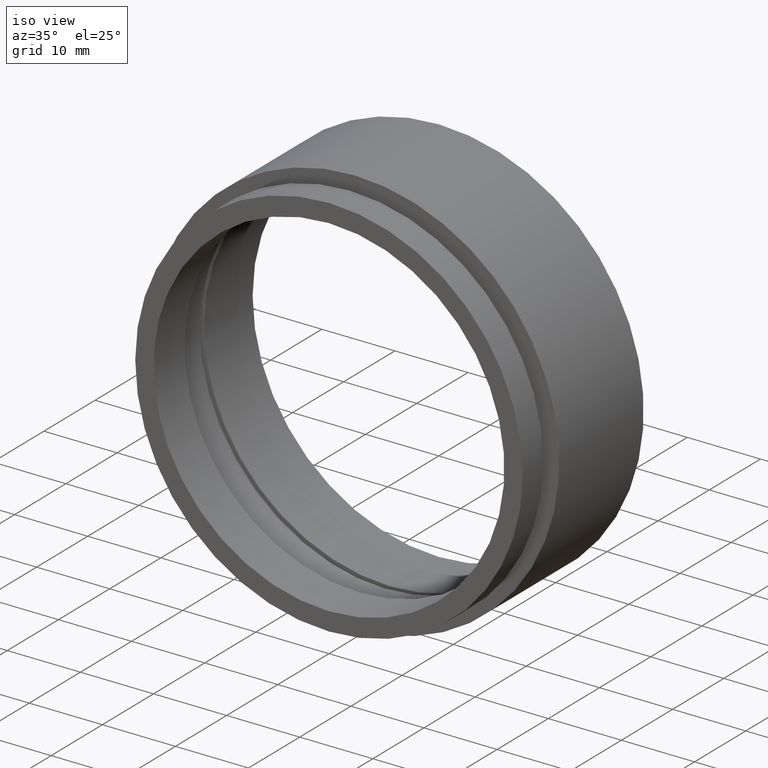
[diagram: clean part render]
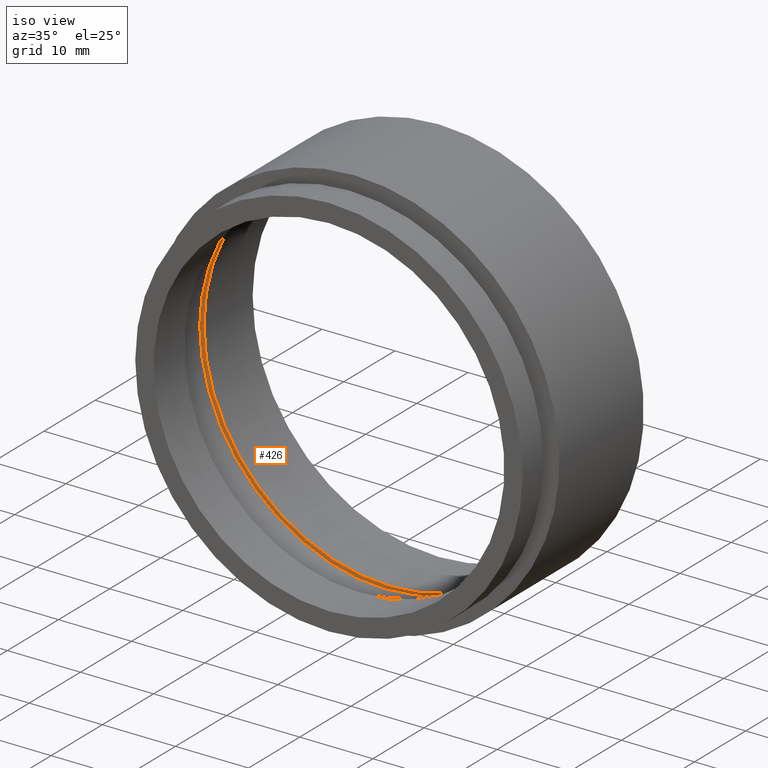
[diagram: same view with one face highlighted and labeled with its STEP entity id]
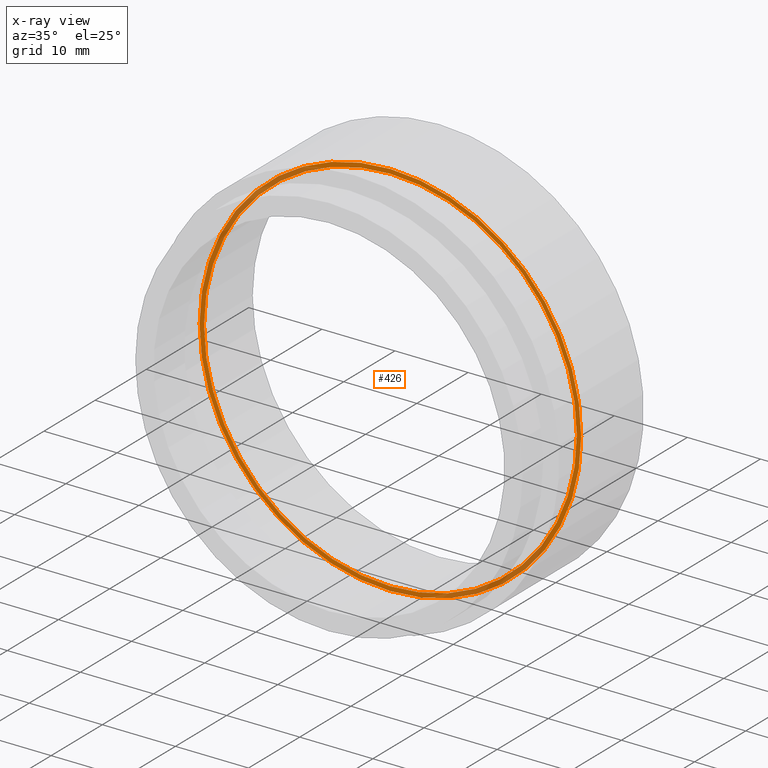
[diagram: x-ray of the same camera — body ghosted, the highlighted face saturated]
A machine part, iso view. The second image highlights one B-rep face of the part: STEP entity #426.
The next image is the same camera in x-ray: the body ghosted, the highlighted face saturated — about 22% of this face is hidden behind the body in this view.
In plain terms, the highlighted planar face has unit normal (0, -1, -0).
Its self-contained STEP definition (entity closure, byte-faithful):
#37 = DIRECTION ( 'NONE',  ( -0.0000000000000000000, -1.000000000000000000, -0.0000000000000000000 ) ) ;
#60 = VERTEX_POINT ( 'NONE', #262 ) ;
#69 = DIRECTION ( 'NONE',  ( 0.0000000000000000000, 0.0000000000000000000, -1.000000000000000000 ) ) ;
#74 = DIRECTION ( 'NONE',  ( 0.0000000000000000000, 0.0000000000000000000, -1.000000000000000000 ) ) ;
#91 = CIRCLE ( 'NONE', #656, 25.50000000000000000 ) ;
#137 = FACE_BOUND ( 'NONE', #516, .T. ) ;
#141 = AXIS2_PLACEMENT_3D ( 'NONE', #318, #410, #654 ) ;
#147 = CIRCLE ( 'NONE', #585, 26.10000000000000100 ) ;
#162 = DIRECTION ( 'NONE',  ( -0.0000000000000000000, -1.000000000000000000, -0.0000000000000000000 ) ) ;
#206 = ORIENTED_EDGE ( 'NONE', *, *, #393, .T. ) ;
#238 = DIRECTION ( 'NONE',  ( -0.0000000000000000000, -1.000000000000000000, -0.0000000000000000000 ) ) ;
#262 = CARTESIAN_POINT ( 'NONE',  ( 3.196328145774592300E-015, 12.00000000000000000, 26.10000000000000100 ) ) ;
#296 = EDGE_CURVE ( 'NONE', #619, #60, #147, .T. ) ;
#301 = EDGE_CURVE ( 'NONE', #664, #461, #91, .T. ) ;
#318 = CARTESIAN_POINT ( 'NONE',  ( 25.50000000000000000, 12.00000000000000000, 0.0000000000000000000 ) ) ;
#343 = CARTESIAN_POINT ( 'NONE',  ( 0.0000000000000000000, 12.00000000000000000, 0.0000000000000000000 ) ) ;
#356 = AXIS2_PLACEMENT_3D ( 'NONE', #593, #238, #74 ) ;
#357 = CARTESIAN_POINT ( 'NONE',  ( 3.122849337825750200E-015, 12.00000000000000000, 25.50000000000000000 ) ) ;
#362 = EDGE_CURVE ( 'NONE', #461, #664, #487, .T. ) ;
#367 = FACE_OUTER_BOUND ( 'NONE', #665, .T. ) ;
#369 = ORIENTED_EDGE ( 'NONE', *, *, #296, .T. ) ;
#393 = EDGE_CURVE ( 'NONE', #60, #619, #402, .T. ) ;
#394 = AXIS2_PLACEMENT_3D ( 'NONE', #645, #37, #69 ) ;
#402 = CIRCLE ( 'NONE', #394, 26.10000000000000100 ) ;
#410 = DIRECTION ( 'NONE',  ( 0.0000000000000000000, -1.000000000000000000, -0.0000000000000000000 ) ) ;
#426 = ADVANCED_FACE ( 'NONE', ( #367, #137 ), #667, .T. ) ;
#461 = VERTEX_POINT ( 'NONE', #357 ) ;
#475 = CARTESIAN_POINT ( 'NONE',  ( 0.0000000000000000000, 12.00000000000000000, -26.10000000000000100 ) ) ;
#478 = DIRECTION ( 'NONE',  ( 0.0000000000000000000, 0.0000000000000000000, -1.000000000000000000 ) ) ;
#487 = CIRCLE ( 'NONE', #356, 25.50000000000000000 ) ;
#515 = DIRECTION ( 'NONE',  ( 0.0000000000000000000, 0.0000000000000000000, -1.000000000000000000 ) ) ;
#516 = EDGE_LOOP ( 'NONE', ( #663, #564 ) ) ;
#554 = DIRECTION ( 'NONE',  ( -0.0000000000000000000, -1.000000000000000000, -0.0000000000000000000 ) ) ;
#564 = ORIENTED_EDGE ( 'NONE', *, *, #362, .F. ) ;
#585 = AXIS2_PLACEMENT_3D ( 'NONE', #604, #554, #515 ) ;
#593 = CARTESIAN_POINT ( 'NONE',  ( 0.0000000000000000000, 12.00000000000000000, 0.0000000000000000000 ) ) ;
#604 = CARTESIAN_POINT ( 'NONE',  ( 0.0000000000000000000, 12.00000000000000000, 0.0000000000000000000 ) ) ;
#613 = CARTESIAN_POINT ( 'NONE',  ( 0.0000000000000000000, 12.00000000000000000, -25.50000000000000000 ) ) ;
#619 = VERTEX_POINT ( 'NONE', #475 ) ;
#645 = CARTESIAN_POINT ( 'NONE',  ( 0.0000000000000000000, 12.00000000000000000, 0.0000000000000000000 ) ) ;
#654 = DIRECTION ( 'NONE',  ( 0.0000000000000000000, 0.0000000000000000000, -1.000000000000000000 ) ) ;
#656 = AXIS2_PLACEMENT_3D ( 'NONE', #343, #162, #478 ) ;
#663 = ORIENTED_EDGE ( 'NONE', *, *, #301, .F. ) ;
#664 = VERTEX_POINT ( 'NONE', #613 ) ;
#665 = EDGE_LOOP ( 'NONE', ( #369, #206 ) ) ;
#667 = PLANE ( 'NONE',  #141 ) ;